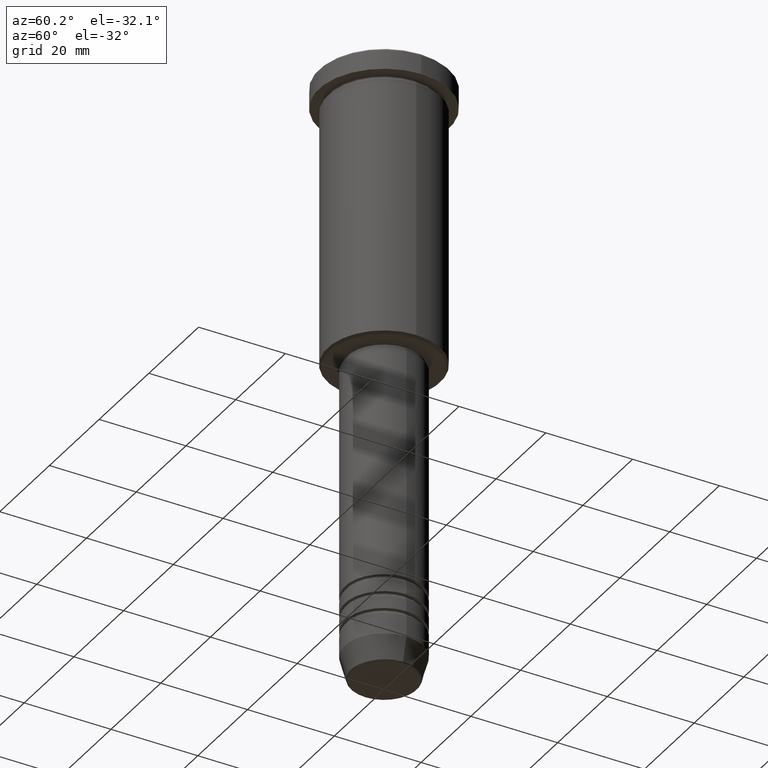
[diagram: clean part render]
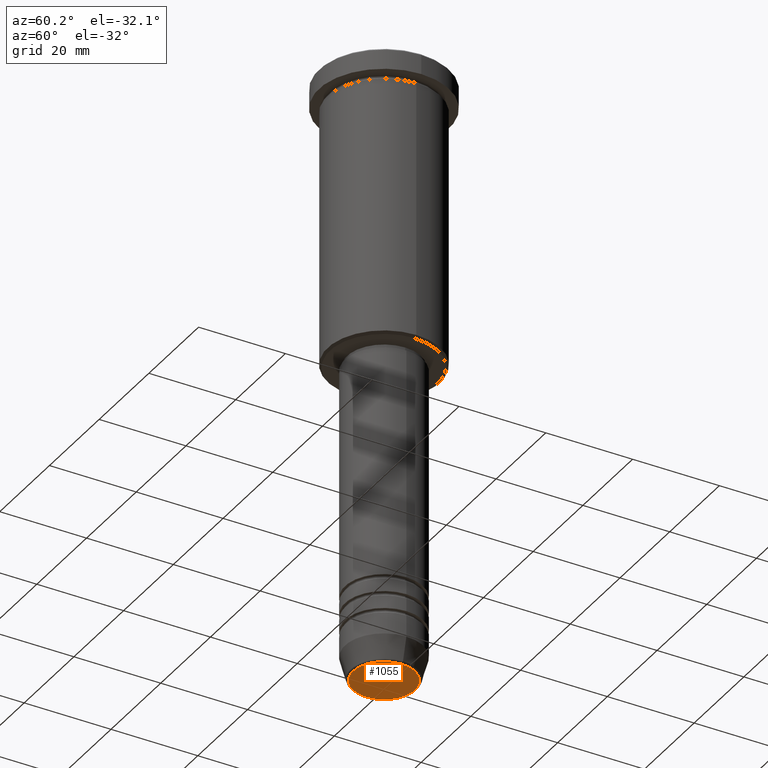
[diagram: same view with one face highlighted and labeled with its STEP entity id]
A machine part, auxiliary view. The second image highlights one B-rep face of the part: STEP entity #1055.
In plain terms, the highlighted planar face has unit normal (0, -0, 1).
Its self-contained STEP definition (entity closure, byte-faithful):
#47 = VERTEX_POINT ( 'NONE', #848 ) ;
#66 = CARTESIAN_POINT ( 'NONE',  ( 0.000000000000000000, 0.000000000000000000, -140.0000000000000000 ) ) ;
#162 = VERTEX_POINT ( 'NONE', #843 ) ;
#244 = DIRECTION ( 'NONE',  ( 0.000000000000000000, 0.000000000000000000, -1.000000000000000000 ) ) ;
#276 = CIRCLE ( 'NONE', #299, 7.142615947639344043 ) ;
#299 = AXIS2_PLACEMENT_3D ( 'NONE', #358, #1181, #542 ) ;
#329 = EDGE_CURVE ( 'NONE', #47, #162, #276, .T. ) ;
#358 = CARTESIAN_POINT ( 'NONE',  ( 0.000000000000000000, 0.000000000000000000, -140.0000000000000000 ) ) ;
#369 = AXIS2_PLACEMENT_3D ( 'NONE', #383, #759, #1124 ) ;
#374 = EDGE_LOOP ( 'NONE', ( #969, #775 ) ) ;
#383 = CARTESIAN_POINT ( 'NONE',  ( 0.000000000000000000, 0.000000000000000000, -140.0000000000000000 ) ) ;
#505 = AXIS2_PLACEMENT_3D ( 'NONE', #66, #244, #883 ) ;
#542 = DIRECTION ( 'NONE',  ( 1.000000000000000000, 0.000000000000000000, 0.000000000000000000 ) ) ;
#705 = EDGE_CURVE ( 'NONE', #162, #47, #938, .T. ) ;
#759 = DIRECTION ( 'NONE',  ( 0.000000000000000000, -0.000000000000000000, 1.000000000000000000 ) ) ;
#775 = ORIENTED_EDGE ( 'NONE', *, *, #705, .T. ) ;
#843 = CARTESIAN_POINT ( 'NONE',  ( -7.142615947639344043, 9.042911250660033433E-16, -140.0000000000000000 ) ) ;
#848 = CARTESIAN_POINT ( 'NONE',  ( 7.142615947639344043, 0.000000000000000000, -140.0000000000000000 ) ) ;
#883 = DIRECTION ( 'NONE',  ( 1.000000000000000000, 0.000000000000000000, 0.000000000000000000 ) ) ;
#937 = PLANE ( 'NONE',  #369 ) ;
#938 = CIRCLE ( 'NONE', #505, 7.142615947639344043 ) ;
#969 = ORIENTED_EDGE ( 'NONE', *, *, #329, .T. ) ;
#1055 = ADVANCED_FACE ( 'NONE', ( #1056 ), #937, .F. ) ;
#1056 = FACE_OUTER_BOUND ( 'NONE', #374, .T. ) ;
#1124 = DIRECTION ( 'NONE',  ( 1.000000000000000000, 0.000000000000000000, 0.000000000000000000 ) ) ;
#1181 = DIRECTION ( 'NONE',  ( 0.000000000000000000, 0.000000000000000000, -1.000000000000000000 ) ) ;